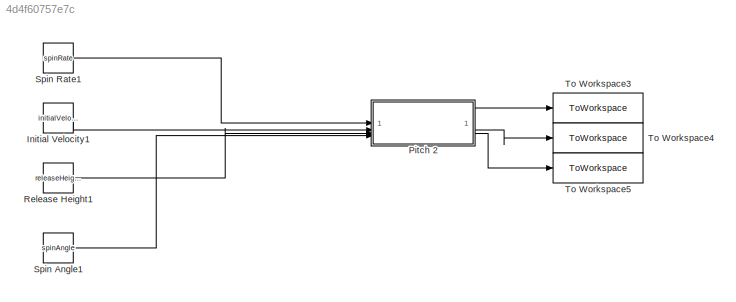
MODEL slx_4d4f60757e7c
KIND model
CONFIG AbsTol = 1e-8
CONFIG EnableMultiTasking = off
CONFIG FixedStep = auto
CONFIG MaxStep = 0.0001
CONFIG MinStep = auto
CONFIG RelTol = 1e-5
CONFIG SampleTimeConstraint = Unconstrained
CONFIG SolverName = ode45
CONFIG StartTime = 0.0
CONFIG StopTime = 10.0
BLOCK [Constant] Initial Velocity1
  Value = initialVelocity
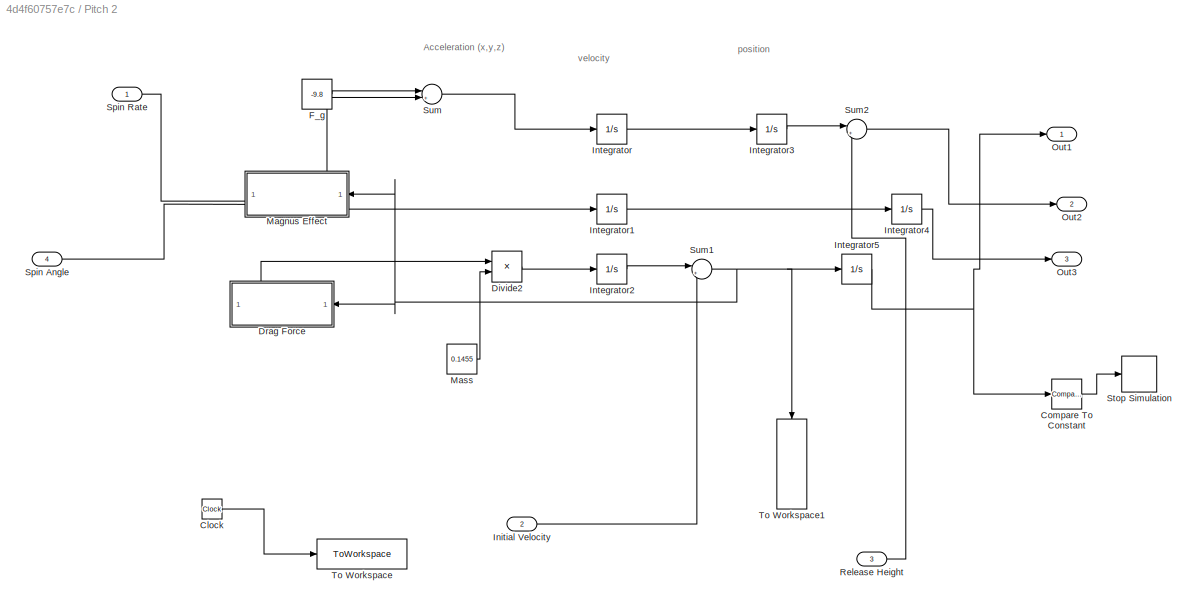
BLOCK [SubSystem] Pitch 2
BLOCK [Clock] Pitch 2/Clock
BLOCK [Reference] Pitch 2/Compare To Constant  REF=simulink/Logic and Bit
Operations/Compare
To Constant
  SourceBlock = simulink/Logic and Bit\nOperations/Compare\nTo Constant
  SourceType = Compare To Constant
BLOCK [Product] Pitch 2/Divide2
  Inputs = */
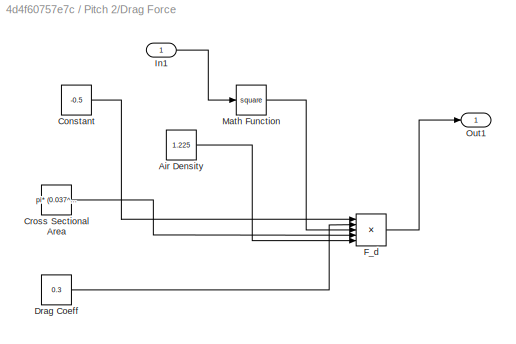
BLOCK [SubSystem] Pitch 2/Drag Force
  NameLocation = top
  PortSchema = {"entries":[{"content":{"sides":[{"content":{"connectorIds":["Out1","In1"]},"type":"ConnectorPlacement.EquallySpacedRectSide","uuid":"216831b0-24e3-4aea-a273-c3106f64cd54"},{"content":{"side":"RIGHT"},"type":"ConnectorPlacement.EquallySpacedRectSide","uuid":"10ad226f-4bf7-4a19-a8e5-d24de9a5a893"},{"content":{"side":"TOP"},"type":"ConnectorPlacement.EquallySpacedRectSide","uuid":"0a6683d0-3335-45e1...<+205ch>
BLOCK [Constant] Pitch 2/Drag Force/Air Density
  Value = 1.225
BLOCK [Constant] Pitch 2/Drag Force/Constant
  Value = -0.5
BLOCK [Constant] Pitch 2/Drag Force/Cross Sectional Area
  Value = pi* (0.037^2)
BLOCK [Constant] Pitch 2/Drag Force/Drag Coeff
  Value = 0.3
BLOCK [Product] Pitch 2/Drag Force/F_d
  Inputs = 5
BLOCK [Inport] Pitch 2/Drag Force/In1
BLOCK [Math] Pitch 2/Drag Force/Math Function
  Operator = square
BLOCK [Outport] Pitch 2/Drag Force/Out1
BLOCK [Constant] Pitch 2/F_g
  Value = -9.8
BLOCK [Inport] Pitch 2/Initial Velocity
  Port = 2
BLOCK [Integrator] Pitch 2/Integrator
BLOCK [Integrator] Pitch 2/Integrator1
BLOCK [Integrator] Pitch 2/Integrator2
BLOCK [Integrator] Pitch 2/Integrator3
BLOCK [Integrator] Pitch 2/Integrator4
BLOCK [Integrator] Pitch 2/Integrator5
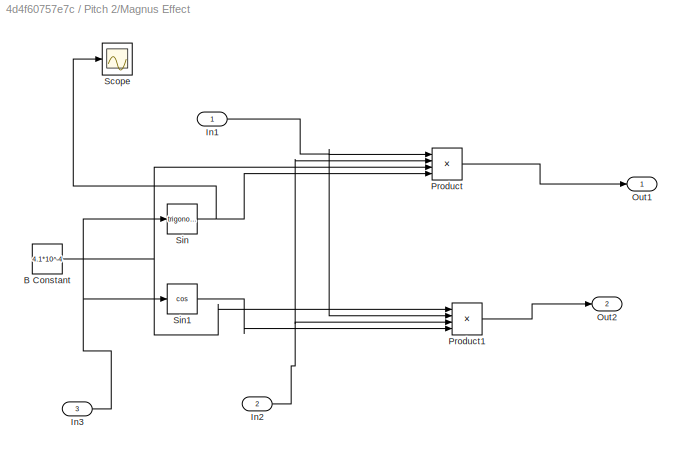
BLOCK [SubSystem] Pitch 2/Magnus Effect
  NameLocation = top
  PortSchema = {"entries":[{"content":{"sides":[{"content":{"connectorIds":["In1","Out1","Out2"]},"type":"ConnectorPlacement.EquallySpacedRectSide","uuid":"98f08cfc-7b60-4007-860c-95789bd91ec7"},{"content":{"connectorIds":["In2","In3"],"side":"RIGHT"},"type":"ConnectorPlacement.EquallySpacedRectSide","uuid":"bf6b90cb-5bdf-4e75-8697-2db2bc3d2708"},{"content":{"side":"TOP"},"type":"ConnectorPlacement.EquallySpaced...<+367ch>
BLOCK [Constant] Pitch 2/Magnus Effect/B Constant
  Value = 4.1*10^-4
BLOCK [Inport] Pitch 2/Magnus Effect/In1
BLOCK [Inport] Pitch 2/Magnus Effect/In2
  Port = 2
BLOCK [Inport] Pitch 2/Magnus Effect/In3
  Port = 3
BLOCK [Outport] Pitch 2/Magnus Effect/Out1
BLOCK [Outport] Pitch 2/Magnus Effect/Out2
  Port = 2
BLOCK [Product] Pitch 2/Magnus Effect/Product
  Inputs = 4
BLOCK [Product] Pitch 2/Magnus Effect/Product1
  Inputs = 4
BLOCK [Scope] Pitch 2/Magnus Effect/Scope
  ActiveDisplayYMaximum = 1.1
  ActiveDisplayYMinimum = 0.9
  DataLoggingVariableName = ScopeData1
  Floating = off
  GraphicalSettings = {"Style":{"BackgroundColor":[0.12941176470588237,0.12941176470588237,0.12941176470588237],"AxesColor":[0.07058823529411765,0.07058823529411765,0.07058823529411765],"LabelsColor":[0.8509803921568627,0.8509803921568627,0.8509803921568627],"PreserveColors":false,"Visible":[true],"LineStyle":["-"],"LineWidth":[1.5],"BarWidth":[0.9],"LineColor":["auto"],"LineFaceAlpha":[1],"LineEdgeAlpha":[1],"Marker":...<+1885ch>
  MultipleDisplayCache = [{"MaxYLimMag":1.1,"MaxYLimReal":1.1,"MinYLimMag":0.9,"MinYLimReal":0.9,"PlotAsMagnitudePhase":false,"ShowGrid":true,"ShowLegend":false,"Title":"%<SignalLabel>","YLabel":""}]
  NumInputPorts = 1
  ScopeFrameLocation = window
  WasSavedAsWebScope = on
  WindowPosition = [440.000000,240.000000,560.000000,420.000000,]
BLOCK [Trigonometry] Pitch 2/Magnus Effect/Sin
BLOCK [Trigonometry] Pitch 2/Magnus Effect/Sin1
  Operator = cos
BLOCK [Constant] Pitch 2/Mass
  Value = 0.1455
BLOCK [Outport] Pitch 2/Out1
BLOCK [Outport] Pitch 2/Out2
  Port = 2
BLOCK [Outport] Pitch 2/Out3
  Port = 3
BLOCK [Inport] Pitch 2/Release Height
  Port = 3
BLOCK [Inport] Pitch 2/Spin Angle
  Port = 4
BLOCK [Inport] Pitch 2/Spin Rate
BLOCK [Stop] Pitch 2/Stop Simulation
BLOCK [Sum] Pitch 2/Sum
  Inputs = |++
BLOCK [Sum] Pitch 2/Sum1
  Inputs = |++
BLOCK [Sum] Pitch 2/Sum2
  Inputs = |++
BLOCK [ToWorkspace] Pitch 2/To Workspace
  FixptAsFi = on
  MaxDataPoints = inf
  SampleTime = -1
  VariableName = time
BLOCK [ToWorkspace] Pitch 2/To Workspace1
  FixptAsFi = on
  MaxDataPoints = inf
  NameLocation = left
  SampleTime = -1
  SaveFormat = Timeseries
  VariableName = ZWFB_speed
BLOCK [Constant] Release Height1
  Value = releaseHeight
BLOCK [Constant] Spin Angle1
  Value = spinAngle
BLOCK [Constant] Spin Rate1
  Value = spinRate
BLOCK [ToWorkspace] To Workspace3
  FixptAsFi = on
  MaxDataPoints = inf
  SampleTime = -1
  VariableName = x
BLOCK [ToWorkspace] To Workspace4
  FixptAsFi = on
  MaxDataPoints = inf
  SampleTime = -1
  VariableName = y
BLOCK [ToWorkspace] To Workspace5
  FixptAsFi = on
  MaxDataPoints = inf
  SampleTime = -1
  VariableName = z
ANNOTATION Pitch 2: Acceleration (x,y,z)
ANNOTATION Pitch 2: position
ANNOTATION Pitch 2: velocity
LINE Initial Velocity1:1 -> Pitch 2:2
LINE Pitch 2/Clock:1 -> Pitch 2/To Workspace:1
LINE Pitch 2/Compare To Constant:1 -> Pitch 2/Stop Simulation:1
LINE Pitch 2/Divide2:1 -> Pitch 2/Integrator2:1
LINE Pitch 2/Drag Force/Air Density:1 -> Pitch 2/Drag Force/F_d:5
LINE Pitch 2/Drag Force/Constant:1 -> Pitch 2/Drag Force/F_d:1
LINE Pitch 2/Drag Force/Cross Sectional Area:1 -> Pitch 2/Drag Force/F_d:4
LINE Pitch 2/Drag Force/Drag Coeff:1 -> Pitch 2/Drag Force/F_d:2
LINE Pitch 2/Drag Force/F_d:1 -> Pitch 2/Drag Force/Out1:1
LINE Pitch 2/Drag Force/In1:1 -> Pitch 2/Drag Force/Math Function:1
LINE Pitch 2/Drag Force/Math Function:1 -> Pitch 2/Drag Force/F_d:3
LINE Pitch 2/Drag Force:1 -> Pitch 2/Divide2:1
LINE Pitch 2/F_g:1 -> Pitch 2/Sum:1
LINE Pitch 2/Initial Velocity:1 -> Pitch 2/Sum1:2
LINE Pitch 2/Integrator1:1 -> Pitch 2/Integrator4:1
LINE Pitch 2/Integrator2:1 -> Pitch 2/Sum1:1
LINE Pitch 2/Integrator3:1 -> Pitch 2/Sum2:1
LINE Pitch 2/Integrator4:1 -> Pitch 2/Out3:1
NET Pitch 2/Integrator5:1 -> Pitch 2/Compare To Constant:1, Pitch 2/Out1:1
LINE Pitch 2/Integrator:1 -> Pitch 2/Integrator3:1
NET Pitch 2/Magnus Effect/B Constant:1 -> Pitch 2/Magnus Effect/Product1:1, Pitch 2/Magnus Effect/Product:3
NET Pitch 2/Magnus Effect/In1:1 -> Pitch 2/Magnus Effect/Product1:2, Pitch 2/Magnus Effect/Product:1
NET Pitch 2/Magnus Effect/In2:1 -> Pitch 2/Magnus Effect/Product1:3, Pitch 2/Magnus Effect/Product:2
NET Pitch 2/Magnus Effect/In3:1 -> Pitch 2/Magnus Effect/Sin1:1, Pitch 2/Magnus Effect/Sin:1
LINE Pitch 2/Magnus Effect/Product1:1 -> Pitch 2/Magnus Effect/Out2:1
LINE Pitch 2/Magnus Effect/Product:1 -> Pitch 2/Magnus Effect/Out1:1
LINE Pitch 2/Magnus Effect/Sin1:1 -> Pitch 2/Magnus Effect/Product1:4
NET Pitch 2/Magnus Effect/Sin:1 -> Pitch 2/Magnus Effect/Product:4, Pitch 2/Magnus Effect/Scope:1
LINE Pitch 2/Magnus Effect:1 -> Pitch 2/Sum:2
LINE Pitch 2/Magnus Effect:2 -> Pitch 2/Integrator1:1
LINE Pitch 2/Mass:1 -> Pitch 2/Divide2:2
LINE Pitch 2/Release Height:1 -> Pitch 2/Sum2:2
LINE Pitch 2/Spin Angle:1 -> Pitch 2/Magnus Effect:3
LINE Pitch 2/Spin Rate:1 -> Pitch 2/Magnus Effect:2
NET Pitch 2/Sum1:1 -> Pitch 2/Drag Force:1, Pitch 2/Integrator5:1, Pitch 2/Magnus Effect:1, Pitch 2/To Workspace1:1
LINE Pitch 2/Sum2:1 -> Pitch 2/Out2:1
LINE Pitch 2/Sum:1 -> Pitch 2/Integrator:1
LINE Pitch 2:1 -> To Workspace3:1
LINE Pitch 2:2 -> To Workspace4:1
LINE Pitch 2:3 -> To Workspace5:1
LINE Release Height1:1 -> Pitch 2:3
LINE Spin Angle1:1 -> Pitch 2:4
LINE Spin Rate1:1 -> Pitch 2:1
note: NET lines group one-source signal fan-out (src -> all destinations, sorted); 1:1 wires keep LINE
